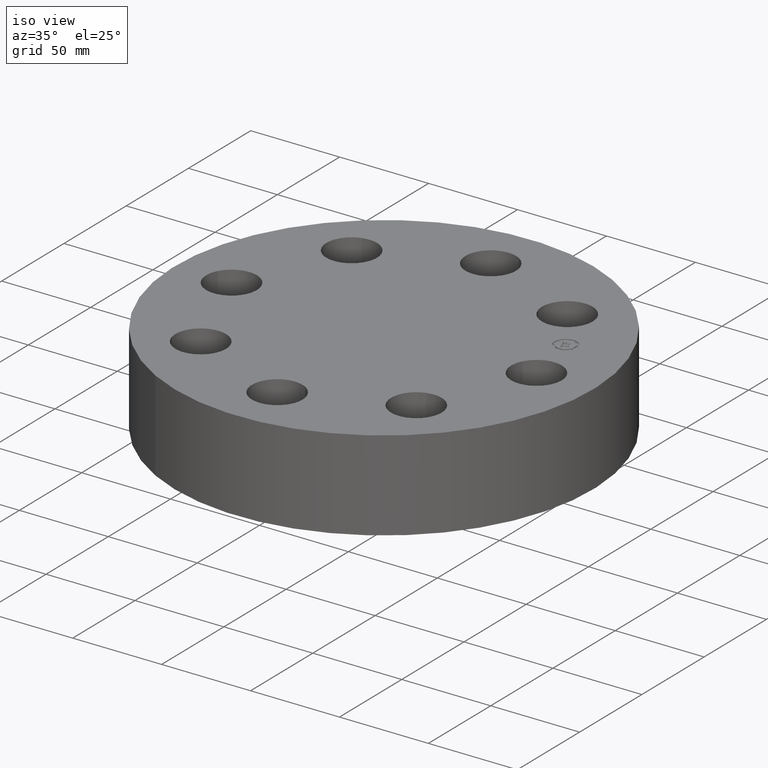
[diagram: clean part render]
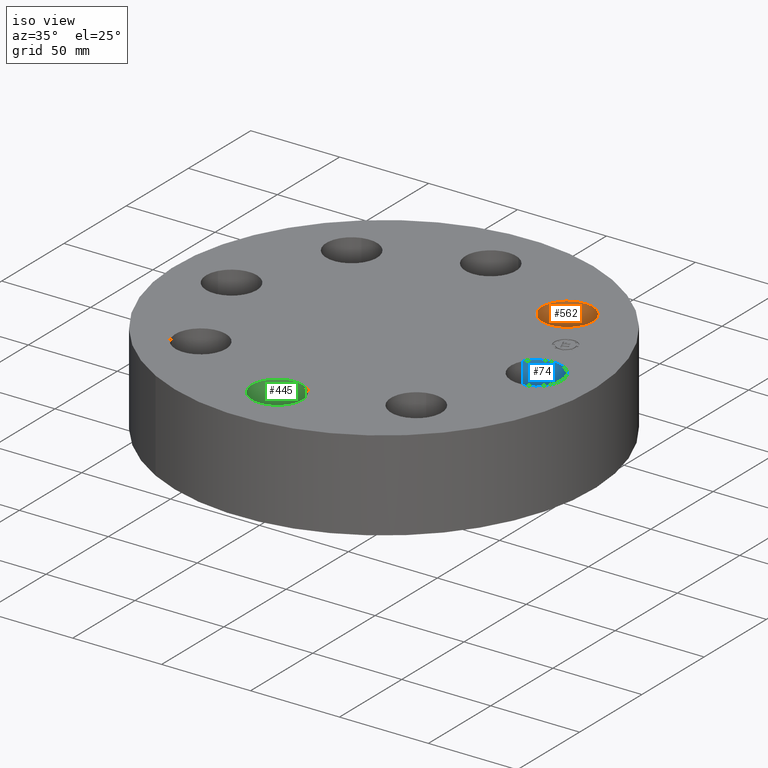
[diagram: same view with three faces highlighted in distinct colors, each labeled with its STEP entity id]
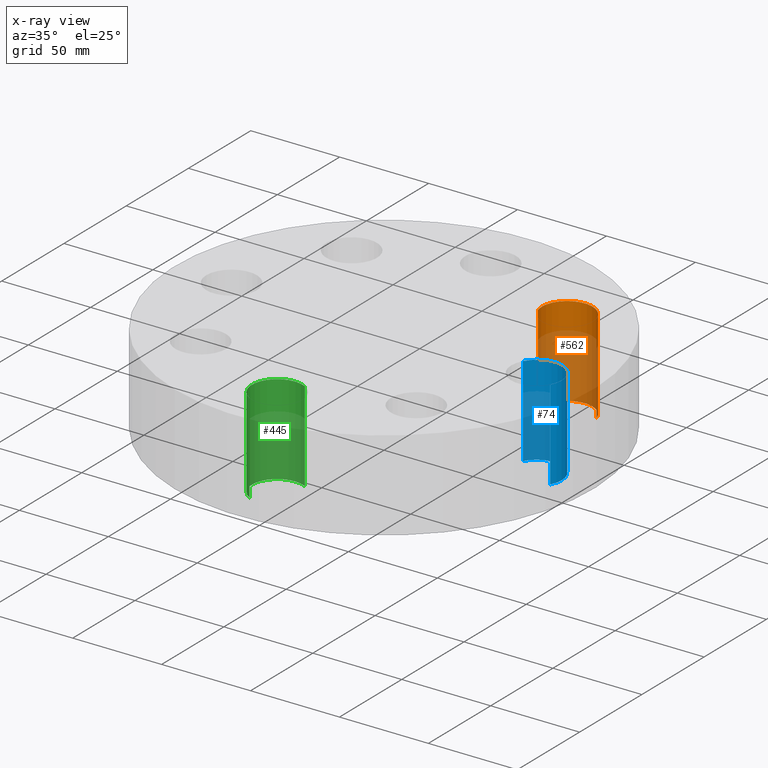
[diagram: x-ray of the same camera — body ghosted, the three highlighted faces saturated]
A machine part, iso view with three faces highlighted in distinct colors.
The next image is the same camera in x-ray (body ghosted, the three faces saturated) — at least one of them is partly hidden behind the body in this view.
Their STEP definitions:

[orange] entity #562 — the highlighted cylindrical surface (edge-blend (fillet) strip) has radius 14.224 mm, axis along (0, 0, -1).
#343=AXIS2_PLACEMENT_3D('Circle Axis2P3D',#341,#342,$) ;
#535=AXIS2_PLACEMENT_3D('Cylinder Axis2P3D',#532,#533,#534) ;
#553=AXIS2_PLACEMENT_3D('Circle Axis2P3D',#551,#552,$) ;
#341=CARTESIAN_POINT('Axis2P3D Location',(2.38648538651,2.38648538651,0.)) ;
#345=CARTESIAN_POINT('Vertex',(1.84913759372,2.22882324907,0.)) ;
#347=CARTESIAN_POINT('Vertex',(2.92383317931,2.54414752395,0.)) ;
#532=CARTESIAN_POINT('Axis2P3D Location',(2.38648538651,2.38648538651,1.99606299213)) ;
#537=CARTESIAN_POINT('Line Origine',(1.84913759372,2.22882324907,1.)) ;
#541=CARTESIAN_POINT('Vertex',(1.84913759372,2.22882324907,2.00000000001)) ;
#544=CARTESIAN_POINT('Line Origine',(2.92383317931,2.54414752395,1.)) ;
#548=CARTESIAN_POINT('Vertex',(2.92383317931,2.54414752395,2.00000000001)) ;
#551=CARTESIAN_POINT('Axis2P3D Location',(2.38648538651,2.38648538651,2.00000000001)) ;
#342=DIRECTION('Axis2P3D Direction',(0.,0.,-0.0393700787402)) ;
#533=DIRECTION('Axis2P3D Direction',(0.,0.,-0.0393700787402)) ;
#534=DIRECTION('Axis2P3D XDirection',(0.0377775444876,0.0110842335096,0.)) ;
#538=DIRECTION('Vector Direction',(0.,0.,-0.0393700787402)) ;
#545=DIRECTION('Vector Direction',(0.,0.,-0.0393700787402)) ;
#552=DIRECTION('Axis2P3D Direction',(0.,0.,-0.0393700787402)) ;
#539=VECTOR('Line Direction',#538,0.0393700787402) ;
#546=VECTOR('Line Direction',#545,0.0393700787402) ;
#557=ORIENTED_EDGE('',*,*,#543,.F.) ;
#558=ORIENTED_EDGE('',*,*,#349,.T.) ;
#559=ORIENTED_EDGE('',*,*,#550,.T.) ;
#560=ORIENTED_EDGE('',*,*,#555,.F.) ;
#562=ADVANCED_FACE('PartBody',(#561),#536,.F.) ;
#344=CIRCLE('generated circle',#343,0.560000000002) ;
#554=CIRCLE('generated circle',#553,0.560000000002) ;
#536=CYLINDRICAL_SURFACE('generated cylinder',#535,0.560000000002) ;
#349=EDGE_CURVE('',#346,#348,#344,.T.) ;
#543=EDGE_CURVE('',#346,#542,#540,.F.) ;
#550=EDGE_CURVE('',#348,#549,#547,.F.) ;
#555=EDGE_CURVE('',#542,#549,#554,.T.) ;
#556=EDGE_LOOP('',(#557,#558,#559,#560)) ;
#561=FACE_OUTER_BOUND('',#556,.T.) ;
#540=LINE('Line',#537,#539) ;
#547=LINE('Line',#544,#546) ;
#346=VERTEX_POINT('',#345) ;
#348=VERTEX_POINT('',#347) ;
#542=VERTEX_POINT('',#541) ;
#549=VERTEX_POINT('',#548) ;

[blue] entity #74 — the highlighted cylindrical surface (edge-blend (fillet) strip) has radius 14.224 mm, axis along (0, -0, -1).
#38=AXIS2_PLACEMENT_3D('Cylinder Axis2P3D',#35,#36,#37) ;
#51=AXIS2_PLACEMENT_3D('Circle Axis2P3D',#49,#50,$) ;
#65=AXIS2_PLACEMENT_3D('Circle Axis2P3D',#63,#64,$) ;
#35=CARTESIAN_POINT('Axis2P3D Location',(3.37500000001,0.,1.99606299213)) ;
#40=CARTESIAN_POINT('Line Origine',(2.88355376535,0.268478301619,1.)) ;
#44=CARTESIAN_POINT('Vertex',(2.88355376535,0.268478301619,0.)) ;
#46=CARTESIAN_POINT('Vertex',(2.88355376535,0.268478301619,2.00000000001)) ;
#49=CARTESIAN_POINT('Axis2P3D Location',(3.37500000001,0.,0.)) ;
#53=CARTESIAN_POINT('Vertex',(3.86644623467,-0.268478301619,0.)) ;
#56=CARTESIAN_POINT('Line Origine',(3.86644623467,-0.268478301619,1.)) ;
#60=CARTESIAN_POINT('Vertex',(3.86644623467,-0.268478301619,2.00000000001)) ;
#63=CARTESIAN_POINT('Axis2P3D Location',(3.37500000001,0.,2.00000000001)) ;
#36=DIRECTION('Axis2P3D Direction',(0.,-0.,-0.0393700787402)) ;
#37=DIRECTION('Axis2P3D XDirection',(0.0345504945626,-0.0188750212049,0.)) ;
#41=DIRECTION('Vector Direction',(0.,0.,-0.0393700787402)) ;
#50=DIRECTION('Axis2P3D Direction',(0.,-0.,-0.0393700787402)) ;
#57=DIRECTION('Vector Direction',(0.,0.,-0.0393700787402)) ;
#64=DIRECTION('Axis2P3D Direction',(0.,-0.,-0.0393700787402)) ;
#42=VECTOR('Line Direction',#41,0.0393700787402) ;
#58=VECTOR('Line Direction',#57,0.0393700787402) ;
#69=ORIENTED_EDGE('',*,*,#48,.F.) ;
#70=ORIENTED_EDGE('',*,*,#55,.T.) ;
#71=ORIENTED_EDGE('',*,*,#62,.T.) ;
#72=ORIENTED_EDGE('',*,*,#67,.F.) ;
#74=ADVANCED_FACE('PartBody',(#73),#39,.F.) ;
#52=CIRCLE('generated circle',#51,0.560000000002) ;
#66=CIRCLE('generated circle',#65,0.560000000002) ;
#39=CYLINDRICAL_SURFACE('generated cylinder',#38,0.560000000002) ;
#48=EDGE_CURVE('',#45,#47,#43,.F.) ;
#55=EDGE_CURVE('',#45,#54,#52,.T.) ;
#62=EDGE_CURVE('',#54,#61,#59,.F.) ;
#67=EDGE_CURVE('',#47,#61,#66,.T.) ;
#68=EDGE_LOOP('',(#69,#70,#71,#72)) ;
#73=FACE_OUTER_BOUND('',#68,.T.) ;
#43=LINE('Line',#40,#42) ;
#59=LINE('Line',#56,#58) ;
#45=VERTEX_POINT('',#44) ;
#47=VERTEX_POINT('',#46) ;
#54=VERTEX_POINT('',#53) ;
#61=VERTEX_POINT('',#60) ;

[green] entity #445 — the highlighted cylindrical surface (edge-blend (fillet) strip) has radius 14.224 mm, axis along (0, -0, -1).
#262=AXIS2_PLACEMENT_3D('Circle Axis2P3D',#260,#261,$) ;
#406=AXIS2_PLACEMENT_3D('Cylinder Axis2P3D',#403,#404,#405) ;
#436=AXIS2_PLACEMENT_3D('Circle Axis2P3D',#434,#435,$) ;
#255=CARTESIAN_POINT('Vertex',(0.268478301619,-2.88355376535,0.)) ;
#257=CARTESIAN_POINT('Vertex',(-0.268478301619,-3.86644623467,0.)) ;
#260=CARTESIAN_POINT('Axis2P3D Location',(-6.2941777774E-016,-3.37500000001,0.)) ;
#403=CARTESIAN_POINT('Axis2P3D Location',(-3.52823321745E-016,-3.37500000001,1.99606299213)) ;
#408=CARTESIAN_POINT('Line Origine',(0.268478301619,-2.88355376535,1.)) ;
#412=CARTESIAN_POINT('Vertex',(0.268478301619,-2.88355376535,2.00000000001)) ;
#415=CARTESIAN_POINT('Line Origine',(-0.268478301619,-3.86644623467,1.)) ;
#419=CARTESIAN_POINT('Vertex',(-0.268478301619,-3.86644623467,2.00000000001)) ;
#434=CARTESIAN_POINT('Axis2P3D Location',(-3.52823321745E-016,-3.37500000001,2.00000000001)) ;
#261=DIRECTION('Axis2P3D Direction',(0.,0.,-0.0393700787402)) ;
#404=DIRECTION('Axis2P3D Direction',(0.,-0.,-0.0393700787402)) ;
#405=DIRECTION('Axis2P3D XDirection',(-0.0188750212049,-0.0345504945626,0.)) ;
#409=DIRECTION('Vector Direction',(0.,0.,-0.0393700787402)) ;
#416=DIRECTION('Vector Direction',(0.,0.,-0.0393700787402)) ;
#435=DIRECTION('Axis2P3D Direction',(0.,-0.,-0.0393700787402)) ;
#410=VECTOR('Line Direction',#409,0.0393700787402) ;
#417=VECTOR('Line Direction',#416,0.0393700787402) ;
#440=ORIENTED_EDGE('',*,*,#421,.F.) ;
#441=ORIENTED_EDGE('',*,*,#264,.T.) ;
#442=ORIENTED_EDGE('',*,*,#414,.T.) ;
#443=ORIENTED_EDGE('',*,*,#438,.F.) ;
#445=ADVANCED_FACE('PartBody',(#444),#407,.F.) ;
#263=CIRCLE('generated circle',#262,0.560000000002) ;
#437=CIRCLE('generated circle',#436,0.560000000002) ;
#407=CYLINDRICAL_SURFACE('generated cylinder',#406,0.560000000002) ;
#264=EDGE_CURVE('',#258,#256,#263,.T.) ;
#414=EDGE_CURVE('',#256,#413,#411,.F.) ;
#421=EDGE_CURVE('',#258,#420,#418,.F.) ;
#438=EDGE_CURVE('',#420,#413,#437,.T.) ;
#439=EDGE_LOOP('',(#440,#441,#442,#443)) ;
#444=FACE_OUTER_BOUND('',#439,.T.) ;
#411=LINE('Line',#408,#410) ;
#418=LINE('Line',#415,#417) ;
#256=VERTEX_POINT('',#255) ;
#258=VERTEX_POINT('',#257) ;
#413=VERTEX_POINT('',#412) ;
#420=VERTEX_POINT('',#419) ;